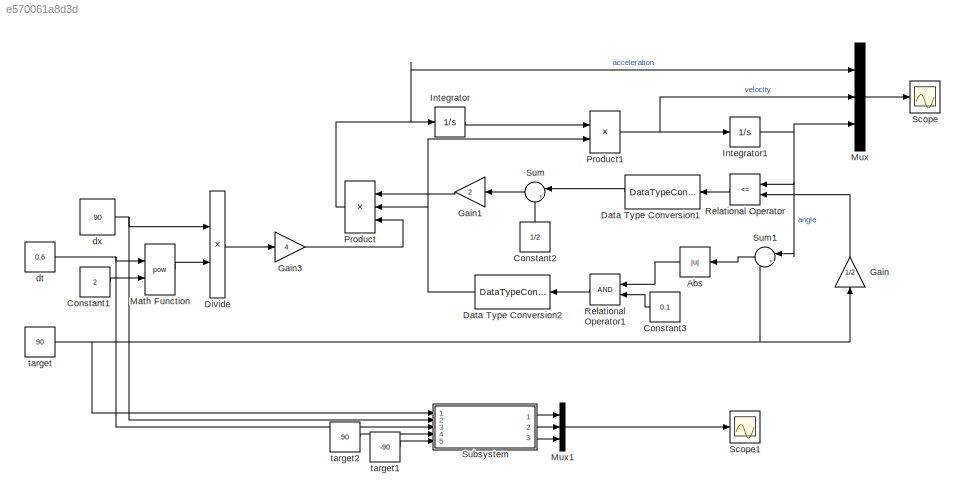
MODEL slx_e570061a8d3d
KIND model
CONFIG AbsTol = auto
CONFIG EnableMultiTasking = off
CONFIG FixedStep = auto
CONFIG MaxStep = auto
CONFIG MinStep = auto
CONFIG RelTol = 1e-3
CONFIG SampleTimeConstraint = Unconstrained
CONFIG Solver = VariableStepAuto
CONFIG SolverName = VariableStepAuto
CONFIG StartTime = 0.0
CONFIG StopTime = 0.6
BLOCK [Abs] Abs
  SaturateOnIntegerOverflow = off
BLOCK [Constant] Constant1
  Value = 2
BLOCK [Constant] Constant2
  NameLocation = right
  Value = 1/2
BLOCK [Constant] Constant3
  Value = 0.1
BLOCK [DataTypeConversion] Data Type Conversion1
  RndMeth = Floor
  SaturateOnIntegerOverflow = off
BLOCK [DataTypeConversion] Data Type Conversion2
  RndMeth = Floor
  SaturateOnIntegerOverflow = off
BLOCK [Product] Divide
  Inputs = */
  Ports = [2, 1]
BLOCK [Gain] Gain
  Gain = 1/2
  NameLocation = left
BLOCK [Gain] Gain1
  Gain = 2
BLOCK [Gain] Gain3
  Gain = 4
BLOCK [Integrator] Integrator
  Ports = [1, 1]
BLOCK [Integrator] Integrator1
  Ports = [1, 1]
BLOCK [Math] Math Function
  Operator = pow
  Ports = [2, 1]
  SignedPower = on
BLOCK [Mux] Mux
  DisplayOption = bar
  Inputs = 3
  Ports = [3, 1]
BLOCK [Mux] Mux1
  DisplayOption = bar
  Inputs = 3
  Ports = [3, 1]
BLOCK [Product] Product
  Inputs = 3
  Ports = [3, 1]
BLOCK [Product] Product1
  Ports = [2, 1]
BLOCK [RelationalOperator] Relational Operator
  InputSameDT = off
  Operator = <=
  OutDataTypeStr = boolean
  Ports = [2, 1]
  RndMeth = Simplest
BLOCK [RelationalOperator] Relational Operator1
  InputSameDT = off
  OutDataTypeStr = boolean
  Ports = [2, 1]
  RndMeth = Simplest
BLOCK [Scope] Scope
  Floating = off
  NumInputPorts = 1
  Ports = [1]
  ScopeSpecificationString = Simulink.scopes.TimeScopeBlockCfg('CurrentConfiguration', extmgr.ConfigurationSet(extmgr.Configuration('Core','General UI',true,'FigureColor',[1 1 1]),extmgr.Configuration('Core','Source UI',true),extmgr.Configuration('Sources','WiredSimulink',true),extmgr.Configuration('Visuals','Time Domain',true,'SerializedDisplays',{struct('MinYLimReal','-14.52643','MaxYLimReal','321.5772','YLabelReal','','Min...<+1878ch>
BLOCK [Scope] Scope1
  Floating = off
  NumInputPorts = 1
  Ports = [1]
  ScopeSpecificationString = Simulink.scopes.TimeScopeBlockCfg('CurrentConfiguration', extmgr.ConfigurationSet(extmgr.Configuration('Core','General UI',true,'FigureColor',[1 1 1]),extmgr.Configuration('Core','Source UI',true),extmgr.Configuration('Sources','WiredSimulink',true,'DataLoggingVariableName','ScopeData2'),extmgr.Configuration('Visuals','Time Domain',true,'SerializedDisplays',{struct('MinYLimReal','-1250.00000','Max...<+1865ch>
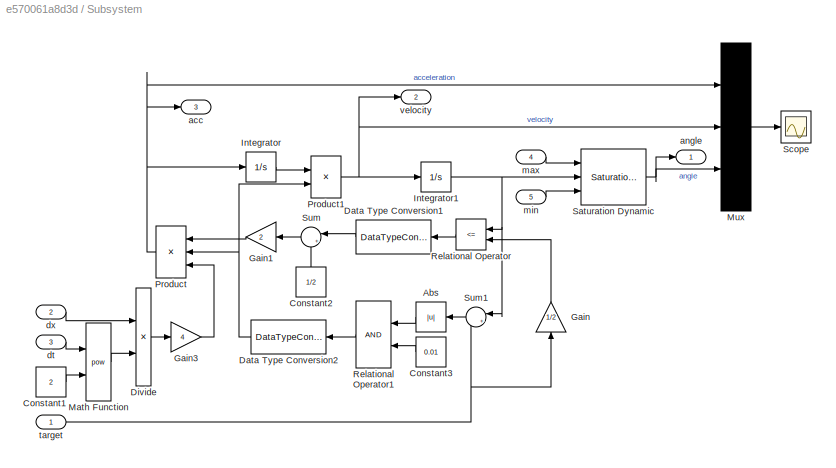
BLOCK [SubSystem] Subsystem
  Ports = [5, 3]
  RequestExecContextInheritance = off
BLOCK [Abs] Subsystem/Abs
  SaturateOnIntegerOverflow = off
BLOCK [Constant] Subsystem/Constant1
  Value = 2
BLOCK [Constant] Subsystem/Constant2
  NameLocation = right
  Value = 1/2
BLOCK [Constant] Subsystem/Constant3
  Value = 0.01
BLOCK [DataTypeConversion] Subsystem/Data Type Conversion1
  RndMeth = Floor
  SaturateOnIntegerOverflow = off
BLOCK [DataTypeConversion] Subsystem/Data Type Conversion2
  RndMeth = Floor
  SaturateOnIntegerOverflow = off
BLOCK [Product] Subsystem/Divide
  Inputs = */
  Ports = [2, 1]
BLOCK [Gain] Subsystem/Gain
  Gain = 1/2
  NameLocation = left
BLOCK [Gain] Subsystem/Gain1
  Gain = 2
BLOCK [Gain] Subsystem/Gain3
  Gain = 4
BLOCK [Integrator] Subsystem/Integrator
  Ports = [1, 1]
BLOCK [Integrator] Subsystem/Integrator1
  Ports = [1, 1]
BLOCK [Math] Subsystem/Math Function
  Operator = pow
  Ports = [2, 1]
  SignedPower = on
BLOCK [Mux] Subsystem/Mux
  DisplayOption = bar
  Inputs = 3
  Ports = [3, 1]
BLOCK [Product] Subsystem/Product
  Inputs = 3
  Ports = [3, 1]
BLOCK [Product] Subsystem/Product1
  Ports = [2, 1]
BLOCK [RelationalOperator] Subsystem/Relational Operator
  InputSameDT = off
  Operator = <=
  OutDataTypeStr = boolean
  Ports = [2, 1]
  RndMeth = Simplest
BLOCK [RelationalOperator] Subsystem/Relational Operator1
  InputSameDT = off
  OutDataTypeStr = boolean
  Ports = [2, 1]
  RndMeth = Simplest
BLOCK [Reference] Subsystem/Saturation Dynamic  REF=simulink/Discontinuities/Saturation
Dynamic
  Ports = [3, 1]
  SourceBlock = simulink/Discontinuities/Saturation\nDynamic
  SourceProductBaseCode = SL
  SourceType = Saturation Dynamic
BLOCK [Scope] Subsystem/Scope
  Floating = off
  NumInputPorts = 1
  Ports = [1]
  ScopeSpecificationString = Simulink.scopes.TimeScopeBlockCfg('CurrentConfiguration', extmgr.ConfigurationSet(extmgr.Configuration('Core','General UI',true,'FigureColor',[0 0 0]),extmgr.Configuration('Core','Source UI',true),extmgr.Configuration('Sources','WiredSimulink',true,'DataLoggingVariableName','ScopeData1'),extmgr.Configuration('Visuals','Time Domain',true,'SerializedDisplays',{struct('MinYLimReal','-1250.00000','Max...<+1621ch>
BLOCK [Sum] Subsystem/Sum
  Inputs = |+-
  Ports = [2, 1]
BLOCK [Sum] Subsystem/Sum1
  Inputs = |+-
  NameLocation = top
  Ports = [2, 1]
BLOCK [Outport] Subsystem/acc
  Port = 3
  VectorParamsAs1DForOutWhenUnconnected = off
BLOCK [Outport] Subsystem/angle
  VectorParamsAs1DForOutWhenUnconnected = off
BLOCK [Inport] Subsystem/dt
  Port = 3
BLOCK [Inport] Subsystem/dx 
  Port = 2
BLOCK [Inport] Subsystem/max
  Port = 4
BLOCK [Inport] Subsystem/min
  Port = 5
BLOCK [Inport] Subsystem/target
BLOCK [Outport] Subsystem/velocity
  Port = 2
  VectorParamsAs1DForOutWhenUnconnected = off
BLOCK [Sum] Sum
  Inputs = |+-
  Ports = [2, 1]
BLOCK [Sum] Sum1
  Inputs = |+-
  NameLocation = top
  Ports = [2, 1]
BLOCK [Constant] dt
  Value = 0.6
BLOCK [Constant] dx
  Value = 90
BLOCK [Constant] target
  Value = 90
BLOCK [Constant] target1
  Value = -90
BLOCK [Constant] target2
  Value = 90
LINE Abs:1 -> Relational Operator1:1
LINE Constant1:1 -> Math Function:2
LINE Constant2:1 -> Sum:2
LINE Constant3:1 -> Relational Operator1:2
LINE Data Type Conversion1:1 -> Sum:1
NET Data Type Conversion2:1 -> Product1:2, Product:2
LINE Divide:1 -> Gain3:1
LINE Gain1:1 -> Product:1
LINE Gain3:1 -> Product:3
LINE Gain:1 -> Relational Operator:2
NET Integrator1:1 -> Mux:3, Relational Operator:1, Sum1:1
LINE Integrator:1 -> Product1:1
LINE Math Function:1 -> Divide:2
LINE Mux1:1 -> Scope1:1
LINE Mux:1 -> Scope:1
NET Product1:1 -> Integrator1:1, Mux:2
NET Product:1 -> Integrator:1, Mux:1
LINE Relational Operator1:1 -> Data Type Conversion2:1
LINE Relational Operator:1 -> Data Type Conversion1:1
LINE Subsystem/Abs:1 -> Subsystem/Relational Operator1:1
LINE Subsystem/Constant1:1 -> Subsystem/Math Function:2
LINE Subsystem/Constant2:1 -> Subsystem/Sum:2
LINE Subsystem/Constant3:1 -> Subsystem/Relational Operator1:2
LINE Subsystem/Data Type Conversion1:1 -> Subsystem/Sum:1
NET Subsystem/Data Type Conversion2:1 -> Subsystem/Product1:2, Subsystem/Product:2
LINE Subsystem/Divide:1 -> Subsystem/Gain3:1
LINE Subsystem/Gain1:1 -> Subsystem/Product:1
LINE Subsystem/Gain3:1 -> Subsystem/Product:3
LINE Subsystem/Gain:1 -> Subsystem/Relational Operator:2
NET Subsystem/Integrator1:1 -> Subsystem/Relational Operator:1, Subsystem/Saturation Dynamic:2, Subsystem/Sum1:1
LINE Subsystem/Integrator:1 -> Subsystem/Product1:1
LINE Subsystem/Math Function:1 -> Subsystem/Divide:2
LINE Subsystem/Mux:1 -> Subsystem/Scope:1
NET Subsystem/Product1:1 -> Subsystem/Integrator1:1, Subsystem/Mux:2, Subsystem/velocity:1
NET Subsystem/Product:1 -> Subsystem/Integrator:1, Subsystem/Mux:1, Subsystem/acc:1
LINE Subsystem/Relational Operator1:1 -> Subsystem/Data Type Conversion2:1
LINE Subsystem/Relational Operator:1 -> Subsystem/Data Type Conversion1:1
NET Subsystem/Saturation Dynamic:1 -> Subsystem/Mux:3, Subsystem/angle:1
LINE Subsystem/Sum1:1 -> Subsystem/Abs:1
LINE Subsystem/Sum:1 -> Subsystem/Gain1:1
LINE Subsystem/dt:1 -> Subsystem/Math Function:1
LINE Subsystem/dx :1 -> Subsystem/Divide:1
LINE Subsystem/max:1 -> Subsystem/Saturation Dynamic:1
LINE Subsystem/min:1 -> Subsystem/Saturation Dynamic:3
NET Subsystem/target:1 -> Subsystem/Gain:1, Subsystem/Sum1:2
LINE Subsystem:1 -> Mux1:1
LINE Subsystem:2 -> Mux1:2
LINE Subsystem:3 -> Mux1:3
LINE Sum1:1 -> Abs:1
LINE Sum:1 -> Gain1:1
NET dt:1 -> Math Function:1, Subsystem:3
NET dx:1 -> Divide:1, Subsystem:2
LINE target1:1 -> Subsystem:5
LINE target2:1 -> Subsystem:4
NET target:1 -> Gain:1, Subsystem:1, Sum1:2
note: NET lines group one-source signal fan-out (src -> all destinations, sorted); 1:1 wires keep LINE
